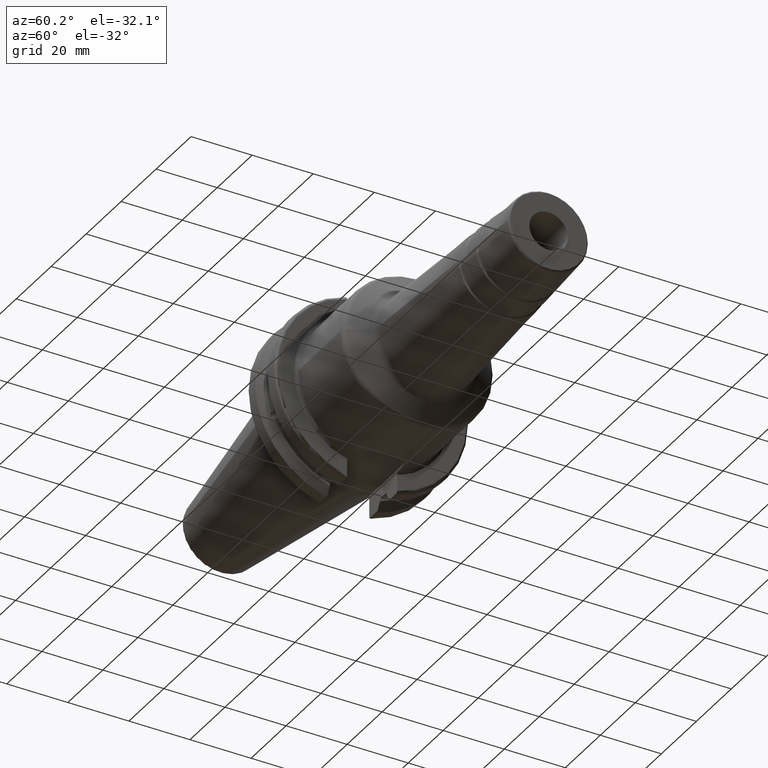
[diagram: clean part render]
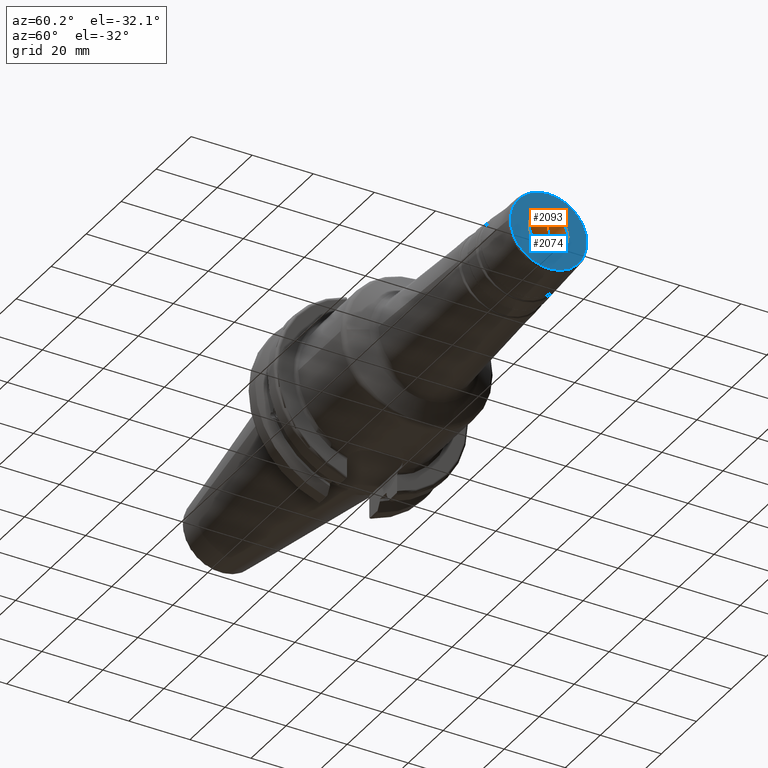
[diagram: same view with the hole feature highlighted: cylindrical wall and planar end face, labeled with their STEP entity ids]
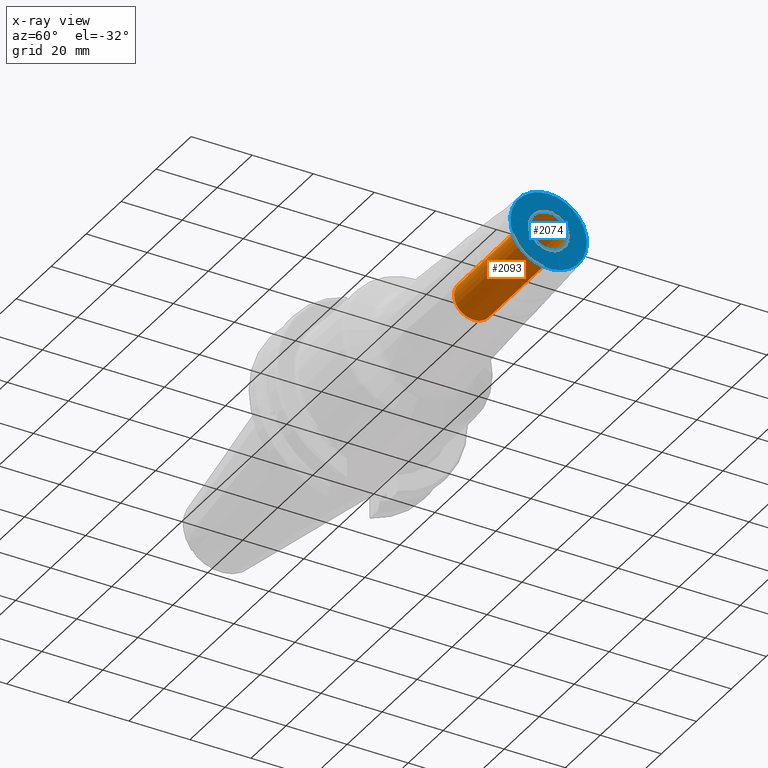
[diagram: x-ray of the same camera — body ghosted, the hole faces saturated]
A machine part, auxiliary view. The highlighted faces form one hole feature of diameter 12.7 mm: the cylindrical wall (entity #2093, orange) and its adjacent planar end face (entity #2074, blue) — they share a circular edge in the B-rep.
The next image is the same camera in x-ray (body ghosted, the hole faces saturated) — the bore reads through the body.
Wall:
#156=CYLINDRICAL_SURFACE('',#2311,6.35);
#212=FACE_OUTER_BOUND('',#321,.T.);
#321=EDGE_LOOP('',(#1584,#1585,#1586,#1587,#1588,#1589));
#433=LINE('',#3545,#532);
#532=VECTOR('',#2758,6.35);
#643=CIRCLE('',#2237,6.35);
#644=CIRCLE('',#2238,6.35);
#699=CIRCLE('',#2312,6.35);
#700=CIRCLE('',#2313,6.35);
#819=VERTEX_POINT('',#3368);
#820=VERTEX_POINT('',#3369);
#875=VERTEX_POINT('',#3544);
#876=VERTEX_POINT('',#3546);
#1071=EDGE_CURVE('',#819,#820,#643,.T.);
#1072=EDGE_CURVE('',#820,#819,#644,.T.);
#1145=EDGE_CURVE('',#820,#875,#433,.T.);
#1146=EDGE_CURVE('',#876,#875,#699,.T.);
#1147=EDGE_CURVE('',#875,#876,#700,.T.);
#1584=ORIENTED_EDGE('',*,*,#1071,.T.);
#1585=ORIENTED_EDGE('',*,*,#1145,.T.);
#1586=ORIENTED_EDGE('',*,*,#1146,.F.);
#1587=ORIENTED_EDGE('',*,*,#1147,.F.);
#1588=ORIENTED_EDGE('',*,*,#1145,.F.);
#1589=ORIENTED_EDGE('',*,*,#1072,.T.);
#2093=ADVANCED_FACE('',(#212),#156,.F.);
#2237=AXIS2_PLACEMENT_3D('',#3370,#2593,#2594);
#2238=AXIS2_PLACEMENT_3D('',#3371,#2595,#2596);
#2311=AXIS2_PLACEMENT_3D('',#3543,#2756,#2757);
#2312=AXIS2_PLACEMENT_3D('',#3547,#2759,#2760);
#2313=AXIS2_PLACEMENT_3D('',#3548,#2761,#2762);
#2593=DIRECTION('center_axis',(1.,0.,0.));
#2594=DIRECTION('ref_axis',(0.,0.,-1.));
#2595=DIRECTION('center_axis',(1.,0.,0.));
#2596=DIRECTION('ref_axis',(0.,0.,-1.));
#2756=DIRECTION('center_axis',(1.,0.,0.));
#2757=DIRECTION('ref_axis',(0.,1.,0.));
#2758=DIRECTION('',(-1.,0.,0.));
#2759=DIRECTION('center_axis',(1.,0.,0.));
#2760=DIRECTION('ref_axis',(0.,0.,-1.));
#2761=DIRECTION('center_axis',(1.,0.,0.));
#2762=DIRECTION('ref_axis',(0.,0.,-1.));
#3368=CARTESIAN_POINT('',(120.,6.35,0.));
#3369=CARTESIAN_POINT('',(120.,-6.35,-7.77650717458569E-16));
#3370=CARTESIAN_POINT('Origin',(120.,0.,0.));
#3371=CARTESIAN_POINT('Origin',(120.,0.,0.));
#3543=CARTESIAN_POINT('Origin',(98.5,0.,0.));
#3544=CARTESIAN_POINT('',(77.,-6.35,-7.77650717458569E-16));
#3545=CARTESIAN_POINT('',(98.5,-6.35,-7.77650717458569E-16));
#3546=CARTESIAN_POINT('',(77.,6.35,0.));
#3547=CARTESIAN_POINT('Origin',(77.,0.,0.));
#3548=CARTESIAN_POINT('Origin',(77.,0.,0.));
End face:
#49=PLANE('',#2236);
#105=FACE_BOUND('',#302,.T.);
#193=FACE_OUTER_BOUND('',#301,.T.);
#301=EDGE_LOOP('',(#1441,#1442));
#302=EDGE_LOOP('',(#1443,#1444));
#634=CIRCLE('',#2226,12.5255177166426);
#639=CIRCLE('',#2231,12.5255177166426);
#643=CIRCLE('',#2237,6.35);
#644=CIRCLE('',#2238,6.35);
#811=VERTEX_POINT('',#3348);
#812=VERTEX_POINT('',#3349);
#819=VERTEX_POINT('',#3368);
#820=VERTEX_POINT('',#3369);
#1061=EDGE_CURVE('',#811,#812,#634,.T.);
#1066=EDGE_CURVE('',#812,#811,#639,.T.);
#1071=EDGE_CURVE('',#819,#820,#643,.T.);
#1072=EDGE_CURVE('',#820,#819,#644,.T.);
#1441=ORIENTED_EDGE('',*,*,#1061,.F.);
#1442=ORIENTED_EDGE('',*,*,#1066,.F.);
#1443=ORIENTED_EDGE('',*,*,#1071,.F.);
#1444=ORIENTED_EDGE('',*,*,#1072,.F.);
#2074=ADVANCED_FACE('',(#193,#105),#49,.T.);
#2226=AXIS2_PLACEMENT_3D('',#3350,#2570,#2571);
#2231=AXIS2_PLACEMENT_3D('',#3358,#2580,#2581);
#2236=AXIS2_PLACEMENT_3D('',#3367,#2591,#2592);
#2237=AXIS2_PLACEMENT_3D('',#3370,#2593,#2594);
#2238=AXIS2_PLACEMENT_3D('',#3371,#2595,#2596);
#2570=DIRECTION('center_axis',(-1.,0.,0.));
#2571=DIRECTION('ref_axis',(0.,-1.,1.83697019872103E-16));
#2580=DIRECTION('center_axis',(-1.,0.,0.));
#2581=DIRECTION('ref_axis',(0.,-1.,1.83697019872103E-16));
#2591=DIRECTION('center_axis',(1.,0.,0.));
#2592=DIRECTION('ref_axis',(0.,0.,-1.));
#2593=DIRECTION('center_axis',(1.,0.,0.));
#2594=DIRECTION('ref_axis',(0.,0.,-1.));
#2595=DIRECTION('center_axis',(1.,0.,0.));
#2596=DIRECTION('ref_axis',(0.,0.,-1.));
#3348=CARTESIAN_POINT('',(120.,12.5255177166426,-3.83483379483744E-15));
#3349=CARTESIAN_POINT('',(120.,-1.53393351793498E-15,12.5255177166426));
#3350=CARTESIAN_POINT('Origin',(120.,0.,0.));
#3358=CARTESIAN_POINT('Origin',(120.,0.,0.));
#3367=CARTESIAN_POINT('Origin',(120.,6.35,0.));
#3368=CARTESIAN_POINT('',(120.,6.35,0.));
#3369=CARTESIAN_POINT('',(120.,-6.35,-7.77650717458569E-16));
#3370=CARTESIAN_POINT('Origin',(120.,0.,0.));
#3371=CARTESIAN_POINT('Origin',(120.,0.,0.));